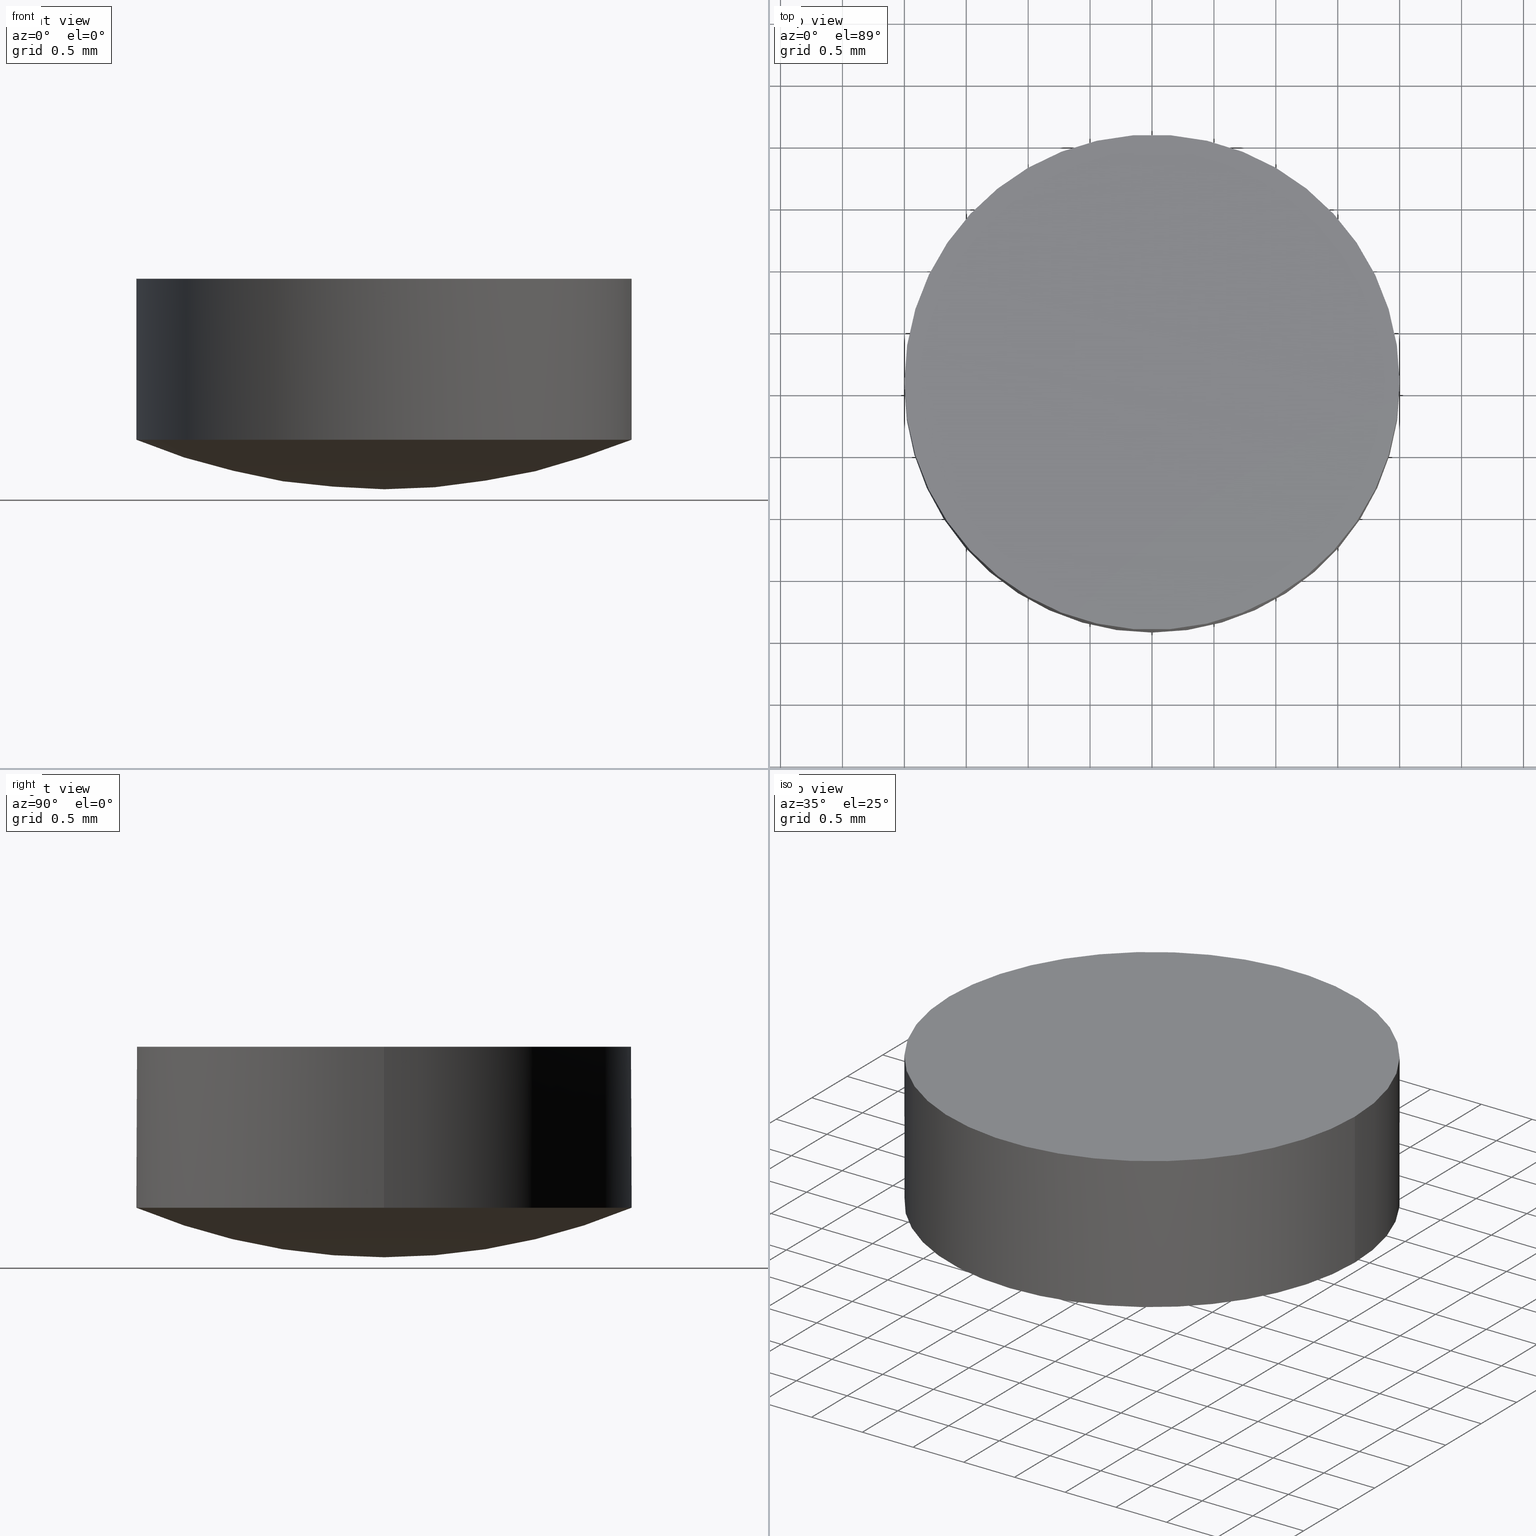
[diagram: canonical four-view strip — front | top / right | iso, engineering-drawing reading convention]
A machine part, canonical four-view strip (front | top / right | iso — engineering-drawing reading convention). The complete STEP part file that produces these views, byte-faithful:
ISO-10303-21;
HEADER;
FILE_DESCRIPTION (( 'STEP AP214' ),
    '1' );
FILE_NAME ('100090.STEP',
    '2019-05-13T03:06:35',
    ( '' ),
    ( '' ),
    'SwSTEP 2.0',
    'SolidWorks 2016',
    '' );
FILE_SCHEMA (( 'AUTOMOTIVE_DESIGN' ));
ENDSEC;

DATA;
#1 = CLOSED_SHELL ( 'NONE', ( #32, #138, #49, #97, #15 ) ) ;
#2 = EDGE_CURVE ( 'NONE', #110, #31, #141, .T. ) ;
#3 = ORIENTED_EDGE ( 'NONE', *, *, #87, .T. ) ;
#4 = SPHERICAL_SURFACE ( 'NONE', #116, 5.199817166830664300 ) ;
#5 = AXIS2_PLACEMENT_3D ( 'NONE', #81, #172, #99 ) ;
#6 = CARTESIAN_POINT ( 'NONE',  ( 0.0000000000000000000, 51.57843641650232100, -397.3732588572372600 ) ) ;
#7 = DIRECTION ( 'NONE',  ( 0.0000000000000000000, -1.000000000000000000, 0.0000000000000000000 ) ) ;
#8 = DIRECTION ( 'NONE',  ( 0.0000000000000000000, 0.0000000000000000000, 1.000000000000000000 ) ) ;
#9 =( LENGTH_UNIT ( ) NAMED_UNIT ( * ) SI_UNIT ( .MILLI., .METRE. ) );
#10 = VERTEX_POINT ( 'NONE', #53 ) ;
#11 =( LENGTH_UNIT ( ) NAMED_UNIT ( * ) SI_UNIT ( .MILLI., .METRE. ) );
#12 = VECTOR ( 'NONE', #52, 1000.000000000000000 ) ;
#13 = PRODUCT_DEFINITION_SHAPE ( 'NONE', 'NONE',  #14 ) ;
#14 = PRODUCT_DEFINITION ( 'δ֪', '', #26, #65 ) ;
#15 = ADVANCED_FACE ( 'NONE', ( #161 ), #174, .F. ) ;
#16 = UNCERTAINTY_MEASURE_WITH_UNIT (LENGTH_MEASURE( 1.000000000000000100E-005 ), #40, 'distance_accuracy_value', 'NONE');
#17 = EDGE_CURVE ( 'NONE', #10, #25, #156, .T. ) ;
#18 = SHAPE_DEFINITION_REPRESENTATION ( #13, #144 ) ;
#19 = EDGE_LOOP ( 'NONE', ( #44, #162, #151, #168, #33 ) ) ;
#20 = DIRECTION ( 'NONE',  ( 0.0000000000000000000, -1.000000000000000000, 0.0000000000000000000 ) ) ;
#21 = AXIS2_PLACEMENT_3D ( 'NONE', #66, #63, #164 ) ;
#22 = DIRECTION ( 'NONE',  ( 1.000000000000000000, 0.0000000000000000000, 0.0000000000000000000 ) ) ;
#23 = PRESENTATION_STYLE_ASSIGNMENT (( #145 ) ) ;
#24 = CARTESIAN_POINT ( 'NONE',  ( 1.999999999999994900, 51.57843641650232100, -398.6732588572372700 ) ) ;
#25 = VERTEX_POINT ( 'NONE', #152 ) ;
#26 = PRODUCT_DEFINITION_FORMATION_WITH_SPECIFIED_SOURCE ( '�κ�', '', #186, .NOT_KNOWN. ) ;
#27 = ORIENTED_EDGE ( 'NONE', *, *, #109, .F. ) ;
#28 = APPLICATION_PROTOCOL_DEFINITION ( 'draft international standard', 'automotive_design', 1998, #74 ) ;
#29 = EDGE_CURVE ( 'NONE', #31, #10, #176, .T. ) ;
#30 = MECHANICAL_DESIGN_GEOMETRIC_PRESENTATION_REPRESENTATION (  '', ( #73 ), #169 ) ;
#31 = VERTEX_POINT ( 'NONE', #84 ) ;
#32 = ADVANCED_FACE ( 'NONE', ( #130 ), #83, .T. ) ;
#33 = ORIENTED_EDGE ( 'NONE', *, *, #175, .T. ) ;
#34 = PRODUCT_RELATED_PRODUCT_CATEGORY ( 'part', '', ( #186 ) ) ;
#35 = CARTESIAN_POINT ( 'NONE',  ( -1.999999999999994900, 51.57843641650232100, -390.4282476773314600 ) ) ;
#36 = AXIS2_PLACEMENT_3D ( 'NONE', #41, #132, #20 ) ;
#37 = PRESENTATION_LAYER_ASSIGNMENT (  '', '', ( #73 ) ) ;
#38 = FILL_AREA_STYLE_COLOUR ( '', #82 ) ;
#39 = CARTESIAN_POINT ( 'NONE',  ( 0.0000000000000000000, 51.57843641650232100, -398.6732588572372700 ) ) ;
#40 =( LENGTH_UNIT ( ) NAMED_UNIT ( * ) SI_UNIT ( .MILLI., .METRE. ) );
#41 = CARTESIAN_POINT ( 'NONE',  ( 0.0000000000000000000, 51.57843641650233500, -393.8734569271085800 ) ) ;
#42 = SPHERICAL_SURFACE ( 'NONE', #36, 5.199817166830664300 ) ;
#43 = DIRECTION ( 'NONE',  ( 0.0000000000000000000, 0.0000000000000000000, 1.000000000000000000 ) ) ;
#44 = ORIENTED_EDGE ( 'NONE', *, *, #2, .T. ) ;
#45 = DIRECTION ( 'NONE',  ( 1.000000000000000000, 0.0000000000000000000, 0.0000000000000000000 ) ) ;
#46 =( NAMED_UNIT ( * ) PLANE_ANGLE_UNIT ( ) SI_UNIT ( $, .RADIAN. ) );
#47 =( NAMED_UNIT ( * ) SI_UNIT ( $, .STERADIAN. ) SOLID_ANGLE_UNIT ( ) );
#48 = AXIS2_PLACEMENT_3D ( 'NONE', #157, #69, #85 ) ;
#49 = ADVANCED_FACE ( 'NONE', ( #51 ), #42, .T. ) ;
#50 = CIRCLE ( 'NONE', #126, 5.199817166830662500 ) ;
#51 = FACE_OUTER_BOUND ( 'NONE', #117, .T. ) ;
#52 = DIRECTION ( 'NONE',  ( -0.0000000000000000000, -0.0000000000000000000, 1.000000000000000000 ) ) ;
#53 = CARTESIAN_POINT ( 'NONE',  ( -1.999999999999994900, 51.57843641650232100, -397.3732588572372600 ) ) ;
#54 = AXIS2_PLACEMENT_3D ( 'NONE', #127, #139, #113 ) ;
#55 = DIRECTION ( 'NONE',  ( 1.000000000000000000, 0.0000000000000000000, 0.0000000000000000000 ) ) ;
#56 = CARTESIAN_POINT ( 'NONE',  ( 2.449293598294660600E-016, 53.57843641650229900, -398.6732588572372700 ) ) ;
#57 = AXIS2_PLACEMENT_3D ( 'NONE', #72, #133, #43 ) ;
#58 =( GEOMETRIC_REPRESENTATION_CONTEXT ( 3 ) GLOBAL_UNCERTAINTY_ASSIGNED_CONTEXT ( ( #16 ) ) GLOBAL_UNIT_ASSIGNED_CONTEXT ( ( #40, #155, #180 ) ) REPRESENTATION_CONTEXT ( 'NONE', 'WORKASPACE' ) );
#59 = SURFACE_SIDE_STYLE ('',( #86 ) ) ;
#60 = FILL_AREA_STYLE ('',( #102 ) ) ;
#61 = CIRCLE ( 'NONE', #94, 1.999999999999994900 ) ;
#62 = AXIS2_PLACEMENT_3D ( 'NONE', #6, #153, #150 ) ;
#63 = DIRECTION ( 'NONE',  ( -0.0000000000000000000, -0.0000000000000000000, 1.000000000000000000 ) ) ;
#64 = ORIENTED_EDGE ( 'NONE', *, *, #175, .F. ) ;
#65 = PRODUCT_DEFINITION_CONTEXT ( 'detailed design', #120, 'design' ) ;
#66 = CARTESIAN_POINT ( 'NONE',  ( 0.0000000000000000000, 51.57843641650232100, -398.6732588572372700 ) ) ;
#67 = VERTEX_POINT ( 'NONE', #101 ) ;
#68 = CARTESIAN_POINT ( 'NONE',  ( 0.0000000000000000000, 51.57843641650232100, -397.3732588572372600 ) ) ;
#69 = DIRECTION ( 'NONE',  ( -0.0000000000000000000, -0.0000000000000000000, 1.000000000000000000 ) ) ;
#70 = CARTESIAN_POINT ( 'NONE',  ( 0.0000000000000000000, 51.57843641650233500, -393.8734569271085800 ) ) ;
#71 = ORIENTED_EDGE ( 'NONE', *, *, #185, .T. ) ;
#72 = CARTESIAN_POINT ( 'NONE',  ( 0.0000000000000000000, 51.57843641650233500, -393.8734569271085800 ) ) ;
#73 = STYLED_ITEM ( 'NONE', ( #135 ), #144 ) ;
#74 = APPLICATION_CONTEXT ( 'automotive_design' ) ;
#75 = AXIS2_PLACEMENT_3D ( 'NONE', #68, #114, #22 ) ;
#76 = ORIENTED_EDGE ( 'NONE', *, *, #103, .T. ) ;
#77 = MECHANICAL_DESIGN_GEOMETRIC_PRESENTATION_REPRESENTATION (  '', ( #137 ), #58 ) ;
#78 = AXIS2_PLACEMENT_3D ( 'NONE', #159, #183, #45 ) ;
#79 = FACE_OUTER_BOUND ( 'NONE', #80, .T. ) ;
#80 = EDGE_LOOP ( 'NONE', ( #27, #112, #64, #111 ) ) ;
#81 = CARTESIAN_POINT ( 'NONE',  ( 0.0000000000000000000, 51.57843641650232100, -397.3732588572372600 ) ) ;
#82 = COLOUR_RGB ( '',1.000000000000000000, 1.000000000000000000, 1.000000000000000000 ) ;
#83 = CYLINDRICAL_SURFACE ( 'NONE', #54, 1.999999999999994900 ) ;
#84 = CARTESIAN_POINT ( 'NONE',  ( -1.999999999999994900, 51.57843641650232100, -398.6732588572372700 ) ) ;
#85 = DIRECTION ( 'NONE',  ( 1.000000000000000000, 0.0000000000000000000, 0.0000000000000000000 ) ) ;
#86 = SURFACE_STYLE_FILL_AREA ( #60 ) ;
#87 = EDGE_CURVE ( 'NONE', #129, #140, #182, .T. ) ;
#88 = FILL_AREA_STYLE ('',( #38 ) ) ;
#89 =( GEOMETRIC_REPRESENTATION_CONTEXT ( 3 ) GLOBAL_UNCERTAINTY_ASSIGNED_CONTEXT ( ( #170 ) ) GLOBAL_UNIT_ASSIGNED_CONTEXT ( ( #11, #106, #108 ) ) REPRESENTATION_CONTEXT ( 'NONE', 'WORKASPACE' ) );
#90 = CIRCLE ( 'NONE', #57, 5.199817166830655400 ) ;
#91 = CARTESIAN_POINT ( 'NONE',  ( 1.999999999999994900, 51.57843641650232100, -390.4282476773314600 ) ) ;
#92 = ORIENTED_EDGE ( 'NONE', *, *, #17, .T. ) ;
#93 = CARTESIAN_POINT ( 'NONE',  ( 0.0000000000000000000, 51.57843641650233500, -393.8734569271085800 ) ) ;
#94 = AXIS2_PLACEMENT_3D ( 'NONE', #39, #166, #55 ) ;
#95 = AXIS2_PLACEMENT_3D ( 'NONE', #119, #8, #122 ) ;
#96 = LINE ( 'NONE', #91, #148 ) ;
#97 = ADVANCED_FACE ( 'NONE', ( #154 ), #123, .T. ) ;
#98 = AXIS2_PLACEMENT_3D ( 'NONE', #177, #143, #118 ) ;
#99 = DIRECTION ( 'NONE',  ( 1.000000000000000000, 0.0000000000000000000, 0.0000000000000000000 ) ) ;
#100 = PRESENTATION_LAYER_ASSIGNMENT (  '', '', ( #137 ) ) ;
#101 = CARTESIAN_POINT ( 'NONE',  ( 0.0000000000000000000, 51.57843641650233500, -399.0732740939392300 ) ) ;
#102 = FILL_AREA_STYLE_COLOUR ( '', #125 ) ;
#103 = EDGE_CURVE ( 'NONE', #25, #10, #128, .T. ) ;
#104 = PRODUCT_CONTEXT ( 'NONE', #74, 'mechanical' ) ;
#105 = ORIENTED_EDGE ( 'NONE', *, *, #109, .T. ) ;
#106 =( NAMED_UNIT ( * ) PLANE_ANGLE_UNIT ( ) SI_UNIT ( $, .RADIAN. ) );
#107 = UNCERTAINTY_MEASURE_WITH_UNIT (LENGTH_MEASURE( 1.000000000000000100E-005 ), #9, 'distance_accuracy_value', 'NONE');
#108 =( NAMED_UNIT ( * ) SI_UNIT ( $, .STERADIAN. ) SOLID_ANGLE_UNIT ( ) );
#109 = EDGE_CURVE ( 'NONE', #67, #129, #90, .T. ) ;
#110 = VERTEX_POINT ( 'NONE', #56 ) ;
#111 = ORIENTED_EDGE ( 'NONE', *, *, #87, .F. ) ;
#112 = ORIENTED_EDGE ( 'NONE', *, *, #163, .T. ) ;
#113 = DIRECTION ( 'NONE',  ( 1.000000000000000000, 0.0000000000000000000, 0.0000000000000000000 ) ) ;
#114 = DIRECTION ( 'NONE',  ( -0.0000000000000000000, -0.0000000000000000000, 1.000000000000000000 ) ) ;
#115 = DIRECTION ( 'NONE',  ( 1.224646799147353700E-016, 1.000000000000000000, 0.0000000000000000000 ) ) ;
#116 = AXIS2_PLACEMENT_3D ( 'NONE', #93, #167, #7 ) ;
#117 = EDGE_LOOP ( 'NONE', ( #124, #105, #146, #179 ) ) ;
#118 = DIRECTION ( 'NONE',  ( 1.000000000000000000, 0.0000000000000000000, 0.0000000000000000000 ) ) ;
#119 = CARTESIAN_POINT ( 'NONE',  ( 0.0000000000000000000, 0.0000000000000000000, 0.0000000000000000000 ) ) ;
#120 = APPLICATION_CONTEXT ( 'automotive_design' ) ;
#121 = EDGE_LOOP ( 'NONE', ( #149, #71, #3, #158, #160 ) ) ;
#122 = DIRECTION ( 'NONE',  ( 1.000000000000000000, 0.0000000000000000000, 0.0000000000000000000 ) ) ;
#123 = CYLINDRICAL_SURFACE ( 'NONE', #98, 1.999999999999994900 ) ;
#124 = ORIENTED_EDGE ( 'NONE', *, *, #163, .F. ) ;
#125 = COLOUR_RGB ( '',1.000000000000000000, 1.000000000000000000, 1.000000000000000000 ) ;
#126 = AXIS2_PLACEMENT_3D ( 'NONE', #70, #131, #115 ) ;
#127 = CARTESIAN_POINT ( 'NONE',  ( 0.0000000000000000000, 51.57843641650232100, -390.4282476773314600 ) ) ;
#128 = CIRCLE ( 'NONE', #75, 1.999999999999994900 ) ;
#129 = VERTEX_POINT ( 'NONE', #142 ) ;
#130 = FACE_OUTER_BOUND ( 'NONE', #19, .T. ) ;
#131 = DIRECTION ( 'NONE',  ( 1.000000000000000000, -1.224646799147353200E-016, 0.0000000000000000000 ) ) ;
#132 = DIRECTION ( 'NONE',  ( 1.000000000000000000, 0.0000000000000000000, 0.0000000000000000000 ) ) ;
#133 = DIRECTION ( 'NONE',  ( -1.000000000000000000, -0.0000000000000000000, -0.0000000000000000000 ) ) ;
#134 = EDGE_CURVE ( 'NONE', #140, #25, #96, .T. ) ;
#135 = PRESENTATION_STYLE_ASSIGNMENT (( #181 ) ) ;
#136 = APPLICATION_PROTOCOL_DEFINITION ( 'draft international standard', 'automotive_design', 1998, #120 ) ;
#137 = STYLED_ITEM ( 'NONE', ( #23 ), #184 ) ;
#138 = ADVANCED_FACE ( 'NONE', ( #79 ), #4, .T. ) ;
#139 = DIRECTION ( 'NONE',  ( -0.0000000000000000000, -0.0000000000000000000, 1.000000000000000000 ) ) ;
#140 = VERTEX_POINT ( 'NONE', #24 ) ;
#141 = CIRCLE ( 'NONE', #21, 1.999999999999994900 ) ;
#142 = CARTESIAN_POINT ( 'NONE',  ( 0.0000000000000000000, 49.57843641650235600, -398.6732588572372700 ) ) ;
#143 = DIRECTION ( 'NONE',  ( -0.0000000000000000000, -0.0000000000000000000, 1.000000000000000000 ) ) ;
#144 = ADVANCED_BREP_SHAPE_REPRESENTATION ( '100090', ( #184, #95 ), #89 ) ;
#145 = SURFACE_STYLE_USAGE ( .BOTH. , #165 ) ;
#146 = ORIENTED_EDGE ( 'NONE', *, *, #185, .F. ) ;
#147 = SURFACE_STYLE_FILL_AREA ( #88 ) ;
#148 = VECTOR ( 'NONE', #178, 1000.000000000000000 ) ;
#149 = ORIENTED_EDGE ( 'NONE', *, *, #29, .F. ) ;
#150 = DIRECTION ( 'NONE',  ( -1.000000000000000000, 0.0000000000000000000, -0.0000000000000000000 ) ) ;
#151 = ORIENTED_EDGE ( 'NONE', *, *, #103, .F. ) ;
#152 = CARTESIAN_POINT ( 'NONE',  ( 1.999999999999994900, 51.57843641650232100, -397.3732588572372600 ) ) ;
#153 = DIRECTION ( 'NONE',  ( 0.0000000000000000000, 0.0000000000000000000, -1.000000000000000000 ) ) ;
#154 = FACE_OUTER_BOUND ( 'NONE', #121, .T. ) ;
#155 =( NAMED_UNIT ( * ) PLANE_ANGLE_UNIT ( ) SI_UNIT ( $, .RADIAN. ) );
#156 = CIRCLE ( 'NONE', #5, 1.999999999999994900 ) ;
#157 = CARTESIAN_POINT ( 'NONE',  ( 0.0000000000000000000, 51.57843641650232100, -398.6732588572372700 ) ) ;
#158 = ORIENTED_EDGE ( 'NONE', *, *, #134, .T. ) ;
#159 = CARTESIAN_POINT ( 'NONE',  ( 0.0000000000000000000, 51.57843641650232100, -398.6732588572372700 ) ) ;
#160 = ORIENTED_EDGE ( 'NONE', *, *, #17, .F. ) ;
#161 = FACE_OUTER_BOUND ( 'NONE', #173, .T. ) ;
#162 = ORIENTED_EDGE ( 'NONE', *, *, #29, .T. ) ;
#163 = EDGE_CURVE ( 'NONE', #67, #110, #50, .T. ) ;
#164 = DIRECTION ( 'NONE',  ( 1.000000000000000000, 0.0000000000000000000, 0.0000000000000000000 ) ) ;
#165 = SURFACE_SIDE_STYLE ('',( #147 ) ) ;
#166 = DIRECTION ( 'NONE',  ( -0.0000000000000000000, -0.0000000000000000000, 1.000000000000000000 ) ) ;
#167 = DIRECTION ( 'NONE',  ( 1.000000000000000000, 0.0000000000000000000, 0.0000000000000000000 ) ) ;
#168 = ORIENTED_EDGE ( 'NONE', *, *, #134, .F. ) ;
#169 =( GEOMETRIC_REPRESENTATION_CONTEXT ( 3 ) GLOBAL_UNCERTAINTY_ASSIGNED_CONTEXT ( ( #107 ) ) GLOBAL_UNIT_ASSIGNED_CONTEXT ( ( #9, #46, #47 ) ) REPRESENTATION_CONTEXT ( 'NONE', 'WORKASPACE' ) );
#170 = UNCERTAINTY_MEASURE_WITH_UNIT (LENGTH_MEASURE( 1.000000000000000100E-005 ), #11, 'distance_accuracy_value', 'NONE');
#171 = CIRCLE ( 'NONE', #78, 1.999999999999994900 ) ;
#172 = DIRECTION ( 'NONE',  ( -0.0000000000000000000, -0.0000000000000000000, 1.000000000000000000 ) ) ;
#173 = EDGE_LOOP ( 'NONE', ( #76, #92 ) ) ;
#174 = PLANE ( 'NONE',  #62 ) ;
#175 = EDGE_CURVE ( 'NONE', #140, #110, #61, .T. ) ;
#176 = LINE ( 'NONE', #35, #12 ) ;
#177 = CARTESIAN_POINT ( 'NONE',  ( 0.0000000000000000000, 51.57843641650232100, -390.4282476773314600 ) ) ;
#178 = DIRECTION ( 'NONE',  ( -0.0000000000000000000, -0.0000000000000000000, 1.000000000000000000 ) ) ;
#179 = ORIENTED_EDGE ( 'NONE', *, *, #2, .F. ) ;
#180 =( NAMED_UNIT ( * ) SI_UNIT ( $, .STERADIAN. ) SOLID_ANGLE_UNIT ( ) );
#181 = SURFACE_STYLE_USAGE ( .BOTH. , #59 ) ;
#182 = CIRCLE ( 'NONE', #48, 1.999999999999994900 ) ;
#183 = DIRECTION ( 'NONE',  ( -0.0000000000000000000, -0.0000000000000000000, 1.000000000000000000 ) ) ;
#184 = MANIFOLD_SOLID_BREP ( '��ת2', #1 ) ;
#185 = EDGE_CURVE ( 'NONE', #31, #129, #171, .T. ) ;
#186 = PRODUCT ( '100090', '100090', '', ( #104 ) ) ;
ENDSEC;
END-ISO-10303-21;
